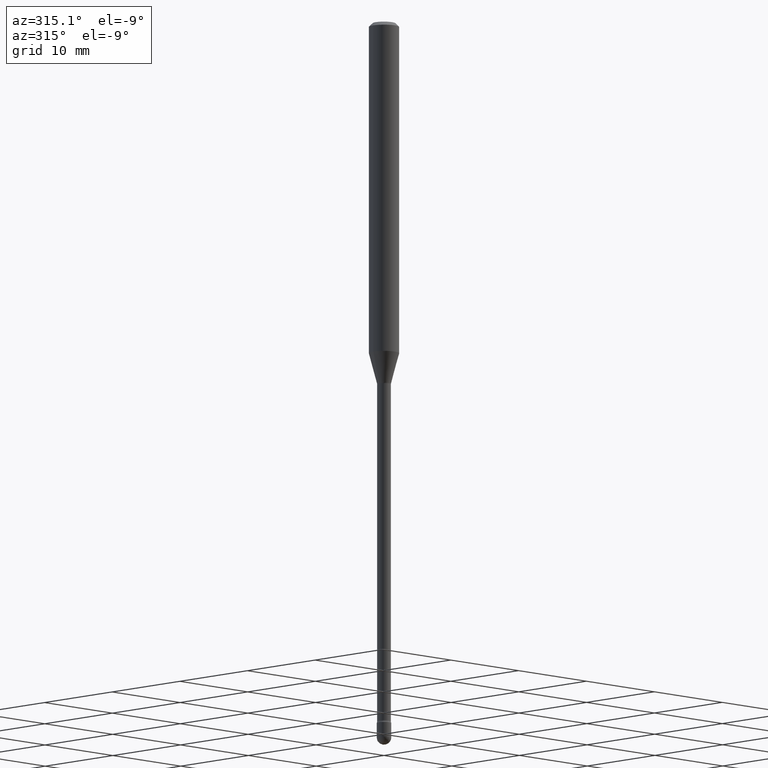
[diagram: clean part render]
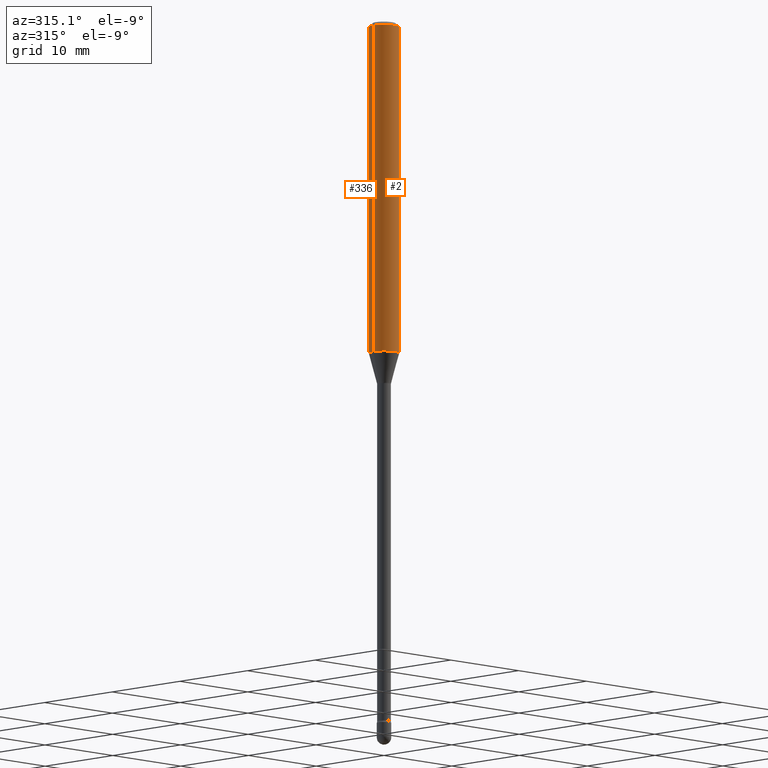
[diagram: same view with one multi-face feature highlighted, each face labeled with its STEP entity id]
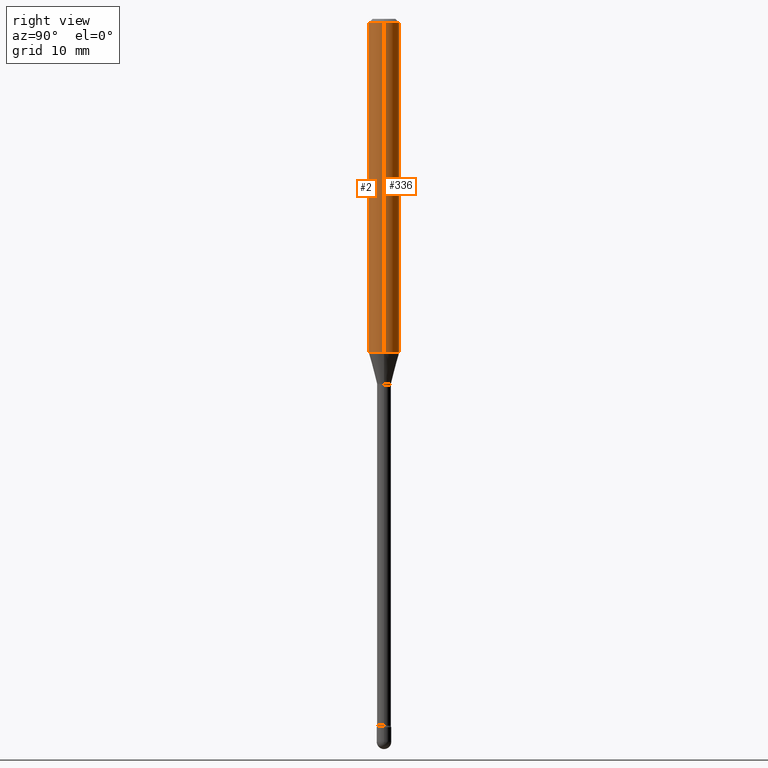
[diagram: same view with one multi-face feature highlighted, each face labeled with its STEP entity id]
A machine part, auxiliary view. The highlighted faces form ONE feature: a constant-radius fillet chain: 2 tangent blend faces with common blend radius 1.5875 mm. The faces share edges in the B-rep.
A second angle (right view) of the same feature is appended — it is thin or edge-on in the first view.
Their STEP definitions:
[1] entity #336 (Cylinder):
#16 = LINE ( 'NONE', #408, #407 ) ;
#28 = CARTESIAN_POINT ( 'NONE',  ( 3.355160354805540645E-29, -4.790279777031446452E-15, -1.371990657300387939 ) ) ;
#43 = CARTESIAN_POINT ( 'NONE',  ( -0.06250000000000000000, -1.977236788706983558E-15, -0.01500000000000008271 ) ) ;
#69 = DIRECTION ( 'NONE',  ( 1.000000000000000000, -6.982962677686262766E-15, 0.000000000000000000 ) ) ;
#77 = CARTESIAN_POINT ( 'NONE',  ( -0.06250000000000000000, 4.440892098500642925E-16, 4.780733988912429571E-16 ) ) ;
#83 = ORIENTED_EDGE ( 'NONE', *, *, #536, .F. ) ;
#87 = DIRECTION ( 'NONE',  ( 1.000000000000000000, -6.982962677686266711E-15, 0.000000000000000000 ) ) ;
#98 = AXIS2_PLACEMENT_3D ( 'NONE', #185, #413, #359 ) ;
#138 = VERTEX_POINT ( 'NONE', #187 ) ;
#155 = ORIENTED_EDGE ( 'NONE', *, *, #404, .F. ) ;
#172 = VERTEX_POINT ( 'NONE', #290 ) ;
#185 = CARTESIAN_POINT ( 'NONE',  ( -1.169113584055446105E-44, 1.669184350826100908E-30, 4.780733988912460139E-16 ) ) ;
#187 = CARTESIAN_POINT ( 'NONE',  ( -0.06250000000000000000, -4.346190567181383047E-15, -1.371990657300387939 ) ) ;
#199 = CARTESIAN_POINT ( 'NONE',  ( 0.06250000000000000000, -5.226714944386837332E-15, -1.371990657300387939 ) ) ;
#228 = EDGE_CURVE ( 'NONE', #303, #138, #306, .T. ) ;
#239 = DIRECTION ( 'NONE',  ( -2.445468806185136877E-29, 3.491481338843145188E-15, 1.000000000000000000 ) ) ;
#242 = FACE_OUTER_BOUND ( 'NONE', #256, .T. ) ;
#256 = EDGE_LOOP ( 'NONE', ( #390, #388, #83, #155 ) ) ;
#258 = DIRECTION ( 'NONE',  ( -2.445468806185136597E-29, 3.491481338843145583E-15, 1.000000000000000000 ) ) ;
#290 = CARTESIAN_POINT ( 'NONE',  ( 0.06250000000000000000, -4.888073874380391431E-16, -0.01500000000000008271 ) ) ;
#293 = DIRECTION ( 'NONE',  ( -2.445468806185136597E-29, 3.491481338843145583E-15, 1.000000000000000000 ) ) ;
#299 = CARTESIAN_POINT ( 'NONE',  ( 3.668203209277725232E-31, -5.237222008264747365E-17, -0.01500000000000008271 ) ) ;
#303 = VERTEX_POINT ( 'NONE', #199 ) ;
#306 = CIRCLE ( 'NONE', #364, 0.06250000000000000000 ) ;
#308 = VECTOR ( 'NONE', #381, 39.37007874015748143 ) ;
#336 = ADVANCED_FACE ( 'NONE', ( #242 ), #486, .T. ) ;
#359 = DIRECTION ( 'NONE',  ( 1.000000000000000000, -6.982962677686266711E-15, 4.852736867747366207E-29 ) ) ;
#364 = AXIS2_PLACEMENT_3D ( 'NONE', #28, #293, #69 ) ;
#381 = DIRECTION ( 'NONE',  ( -2.445468806185136877E-29, 3.491481338843145188E-15, 1.000000000000000000 ) ) ;
#388 = ORIENTED_EDGE ( 'NONE', *, *, #516, .T. ) ;
#390 = ORIENTED_EDGE ( 'NONE', *, *, #228, .T. ) ;
#404 = EDGE_CURVE ( 'NONE', #303, #172, #16, .T. ) ;
#407 = VECTOR ( 'NONE', #239, 39.37007874015748143 ) ;
#408 = CARTESIAN_POINT ( 'NONE',  ( 0.06250000000000000000, -4.364351673553899931E-16, 4.780733988912490708E-16 ) ) ;
#413 = DIRECTION ( 'NONE',  ( -2.445468806185136597E-29, 3.491481338843145583E-15, 1.000000000000000000 ) ) ;
#448 = CIRCLE ( 'NONE', #484, 0.06250000000000000000 ) ;
#467 = VERTEX_POINT ( 'NONE', #43 ) ;
#471 = LINE ( 'NONE', #77, #308 ) ;
#484 = AXIS2_PLACEMENT_3D ( 'NONE', #299, #258, #87 ) ;
#486 = CYLINDRICAL_SURFACE ( 'NONE', #98, 0.06250000000000000000 ) ;
#516 = EDGE_CURVE ( 'NONE', #138, #467, #471, .T. ) ;
#536 = EDGE_CURVE ( 'NONE', #172, #467, #448, .T. ) ;
[2] entity #2 (Cylinder):
#2 = ADVANCED_FACE ( 'NONE', ( #346 ), #519, .T. ) ;
#5 = CARTESIAN_POINT ( 'NONE',  ( -1.169113584055446105E-44, 1.669184350826100908E-30, 4.780733988912460139E-16 ) ) ;
#16 = LINE ( 'NONE', #408, #407 ) ;
#23 = DIRECTION ( 'NONE',  ( -2.445468806185136597E-29, 3.491481338843145583E-15, 1.000000000000000000 ) ) ;
#41 = EDGE_LOOP ( 'NONE', ( #151, #501, #510, #551 ) ) ;
#43 = CARTESIAN_POINT ( 'NONE',  ( -0.06250000000000000000, -1.977236788706983558E-15, -0.01500000000000008271 ) ) ;
#66 = DIRECTION ( 'NONE',  ( 1.000000000000000000, -6.982962677686266711E-15, 0.000000000000000000 ) ) ;
#77 = CARTESIAN_POINT ( 'NONE',  ( -0.06250000000000000000, 4.440892098500642925E-16, 4.780733988912429571E-16 ) ) ;
#110 = DIRECTION ( 'NONE',  ( -2.445468806185136597E-29, 3.491481338843145583E-15, 1.000000000000000000 ) ) ;
#138 = VERTEX_POINT ( 'NONE', #187 ) ;
#151 = ORIENTED_EDGE ( 'NONE', *, *, #516, .F. ) ;
#172 = VERTEX_POINT ( 'NONE', #290 ) ;
#184 = CIRCLE ( 'NONE', #475, 0.06250000000000000000 ) ;
#187 = CARTESIAN_POINT ( 'NONE',  ( -0.06250000000000000000, -4.346190567181383047E-15, -1.371990657300387939 ) ) ;
#194 = DIRECTION ( 'NONE',  ( 1.000000000000000000, -6.982962677686262766E-15, 0.000000000000000000 ) ) ;
#199 = CARTESIAN_POINT ( 'NONE',  ( 0.06250000000000000000, -5.226714944386837332E-15, -1.371990657300387939 ) ) ;
#239 = DIRECTION ( 'NONE',  ( -2.445468806185136877E-29, 3.491481338843145188E-15, 1.000000000000000000 ) ) ;
#264 = EDGE_CURVE ( 'NONE', #138, #303, #184, .T. ) ;
#290 = CARTESIAN_POINT ( 'NONE',  ( 0.06250000000000000000, -4.888073874380391431E-16, -0.01500000000000008271 ) ) ;
#303 = VERTEX_POINT ( 'NONE', #199 ) ;
#308 = VECTOR ( 'NONE', #381, 39.37007874015748143 ) ;
#318 = CARTESIAN_POINT ( 'NONE',  ( 3.668203209277725232E-31, -5.237222008264747365E-17, -0.01500000000000008271 ) ) ;
#341 = EDGE_CURVE ( 'NONE', #467, #172, #441, .T. ) ;
#346 = FACE_OUTER_BOUND ( 'NONE', #41, .T. ) ;
#350 = DIRECTION ( 'NONE',  ( -2.445468806185136597E-29, 3.491481338843145583E-15, 1.000000000000000000 ) ) ;
#381 = DIRECTION ( 'NONE',  ( -2.445468806185136877E-29, 3.491481338843145188E-15, 1.000000000000000000 ) ) ;
#396 = DIRECTION ( 'NONE',  ( 1.000000000000000000, -6.982962677686266711E-15, 4.852736867747366207E-29 ) ) ;
#404 = EDGE_CURVE ( 'NONE', #303, #172, #16, .T. ) ;
#407 = VECTOR ( 'NONE', #239, 39.37007874015748143 ) ;
#408 = CARTESIAN_POINT ( 'NONE',  ( 0.06250000000000000000, -4.364351673553899931E-16, 4.780733988912490708E-16 ) ) ;
#416 = AXIS2_PLACEMENT_3D ( 'NONE', #318, #110, #66 ) ;
#441 = CIRCLE ( 'NONE', #416, 0.06250000000000000000 ) ;
#447 = AXIS2_PLACEMENT_3D ( 'NONE', #5, #350, #396 ) ;
#467 = VERTEX_POINT ( 'NONE', #43 ) ;
#471 = LINE ( 'NONE', #77, #308 ) ;
#475 = AXIS2_PLACEMENT_3D ( 'NONE', #505, #23, #194 ) ;
#501 = ORIENTED_EDGE ( 'NONE', *, *, #264, .T. ) ;
#505 = CARTESIAN_POINT ( 'NONE',  ( 3.355160354805540645E-29, -4.790279777031446452E-15, -1.371990657300387939 ) ) ;
#510 = ORIENTED_EDGE ( 'NONE', *, *, #404, .T. ) ;
#516 = EDGE_CURVE ( 'NONE', #138, #467, #471, .T. ) ;
#519 = CYLINDRICAL_SURFACE ( 'NONE', #447, 0.06250000000000000000 ) ;
#551 = ORIENTED_EDGE ( 'NONE', *, *, #341, .F. ) ;